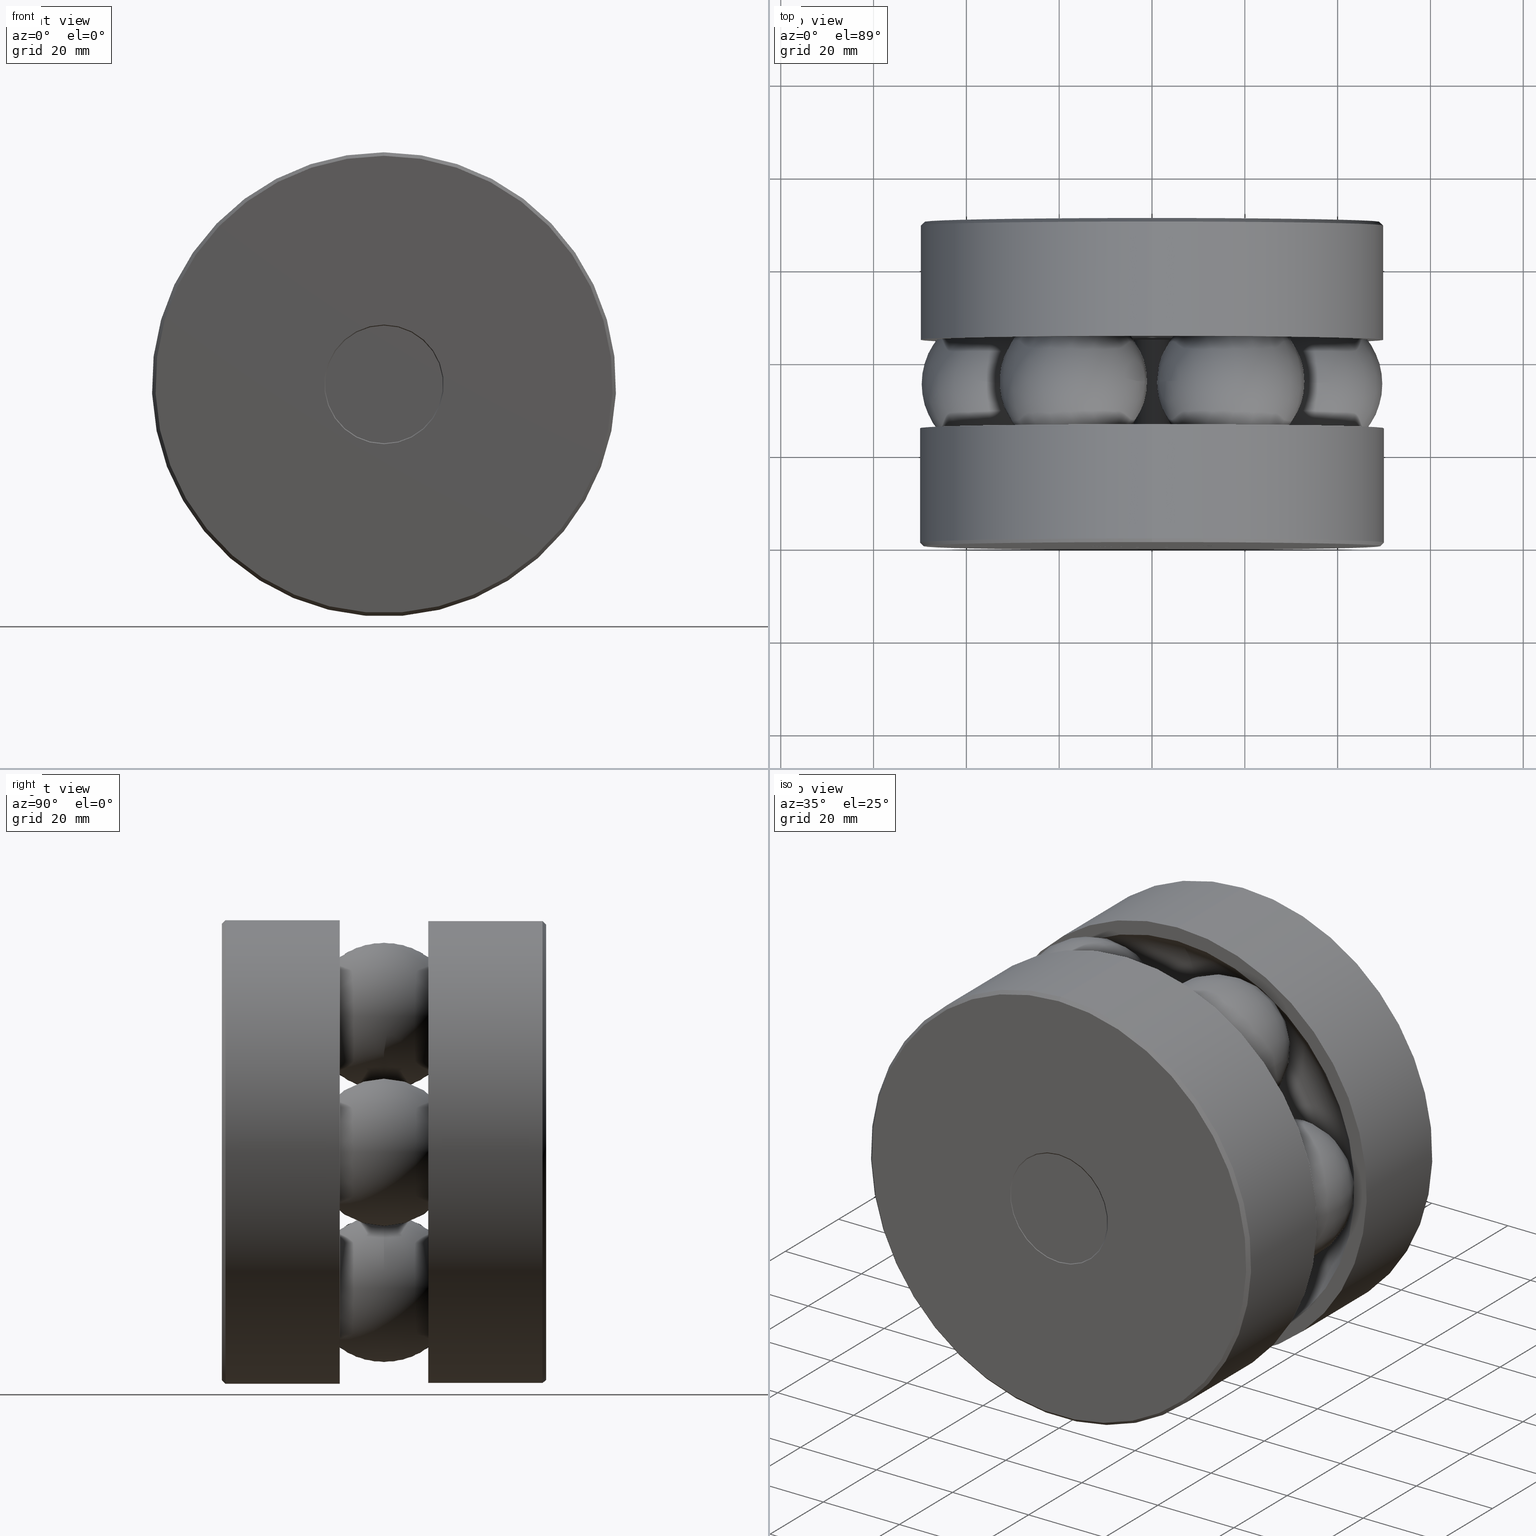
[diagram: canonical four-view strip — front | top / right | iso, engineering-drawing reading convention]
A machine part, canonical four-view strip (front | top / right | iso — engineering-drawing reading convention). The complete STEP part file that produces these views, byte-faithful:
ISO-10303-21;
HEADER;
FILE_DESCRIPTION (( 'STEP AP203' ),
    '1' );
FILE_NAME ('T-114RG_T-114RG-3015.step',
    '2016-02-04T16:15:55',
    ( '' ),
    ( '' ),
    'SwSTEP 2.0',
    'SolidWorks 2016',
    '' );
FILE_SCHEMA (( 'CONFIG_CONTROL_DESIGN' ));
ENDSEC;

DATA;
#1 = EDGE_CURVE ( 'NONE', #110, #110, #397, .T. ) ;
#2 = CARTESIAN_POINT ( 'NONE',  ( 0.0000000000000000000, 0.0000000000000000000, 0.0000000000000000000 ) ) ;
#3 = AXIS2_PLACEMENT_3D ( 'NONE', #221, #475, #307 ) ;
#4 = FACE_OUTER_BOUND ( 'NONE', #491, .T. ) ;
#5 = ORIENTED_EDGE ( 'NONE', *, *, #25, .T. ) ;
#6 = SPHERICAL_SURFACE ( 'NONE', #282, 0.6250000000000000000 ) ;
#7 = DIRECTION ( 'NONE',  ( 0.4999999999999979500, 0.0000000000000000000, -0.8660254037844397100 ) ) ;
#8 = ADVANCED_FACE ( 'NONE', ( ), #508, .T. ) ;
#9 = CLOSED_SHELL ( 'NONE', ( #424 ) ) ;
#10 = DIRECTION ( 'NONE',  ( -0.0000000000000000000, 1.000000000000000000, -0.0000000000000000000 ) ) ;
#11 = ADVANCED_FACE ( 'NONE', ( #63, #171 ), #481, .T. ) ;
#12 = PRODUCT_DEFINITION_SHAPE ( 'NONE', 'NONE',  #144 ) ;
#13 = DIRECTION ( 'NONE',  ( 0.0000000000000000000, 0.0000000000000000000, 1.000000000000000000 ) ) ;
#14 = APPROVAL_DATE_TIME ( #121, #170 ) ;
#15 = MANIFOLD_SOLID_BREP ( 'BALLS[4]', #459 ) ;
#16 = FACE_BOUND ( 'NONE', #161, .T. ) ;
#17 = AXIS2_PLACEMENT_3D ( 'NONE', #217, #265, #385 ) ;
#18 = APPROVAL ( #103, 'UNSPECIFIED' ) ;
#19 = DIRECTION ( 'NONE',  ( 0.0000000000000000000, 0.0000000000000000000, 1.000000000000000000 ) ) ;
#20 = EDGE_CURVE ( 'NONE', #196, #196, #499, .T. ) ;
#21 = CARTESIAN_POINT ( 'NONE',  ( 0.0000000000000000000, 2.406250000000000000, 0.1560000000000003900 ) ) ;
#22 = CIRCLE ( 'NONE', #81, 1.962000000000000000 ) ;
#23 = FACE_BOUND ( 'NONE', #250, .T. ) ;
#24 = PERSON ( 'UNSPECIFIED', 'UNSPECIFIED', 'UNSPECIFIED', ('UNSPECIFIED'), ('UNSPECIFIED'), ('UNSPECIFIED') ) ;
#25 = EDGE_CURVE ( 'NONE', #406, #406, #277, .T. ) ;
#26 = PERSON_AND_ORGANIZATION_ROLE ( 'creator' ) ;
#27 = APPROVAL_PERSON_ORGANIZATION ( #132, #170, #313 ) ;
#28 = AXIS2_PLACEMENT_3D ( 'NONE', #181, #226, #347 ) ;
#29 = ORIENTED_EDGE ( 'NONE', *, *, #79, .F. ) ;
#30 = DIRECTION ( 'NONE',  ( 0.0000000000000000000, -0.0000000000000000000, -1.000000000000000000 ) ) ;
#31 = EDGE_CURVE ( 'NONE', #294, #294, #381, .T. ) ;
#32 = CONICAL_SURFACE ( 'NONE', #464, 0.1560000000000000300, 0.7853981633974437300 ) ;
#33 = CARTESIAN_POINT ( 'NONE',  ( 0.0000000000000000000, 1.749999999999999600, 0.0000000000000000000 ) ) ;
#34 = AXIS2_PLACEMENT_3D ( 'NONE', #519, #268, #139 ) ;
#35 = CIRCLE ( 'NONE', #193, 0.1560000000000000300 ) ;
#36 = EDGE_LOOP ( 'NONE', ( #209 ) ) ;
#37 = AXIS2_PLACEMENT_3D ( 'NONE', #390, #48, #254 ) ;
#38 = CC_DESIGN_APPROVAL ( #18, ( #473 ) ) ;
#39 = DIRECTION ( 'NONE',  ( 0.0000000000000000000, -1.000000000000000000, 0.0000000000000000000 ) ) ;
#40 = EDGE_CURVE ( 'NONE', #185, #185, #44, .T. ) ;
#41 = DIRECTION ( 'NONE',  ( -0.0000000000000000000, 1.000000000000000000, -0.0000000000000000000 ) ) ;
#42 = FACE_OUTER_BOUND ( 'NONE', #479, .T. ) ;
#43 = VERTEX_POINT ( 'NONE', #414 ) ;
#44 = CIRCLE ( 'NONE', #514, 0.1610000000000002800 ) ;
#45 = ADVANCED_FACE ( 'NONE', ( #73, #371 ), #158, .F. ) ;
#46 = EDGE_LOOP ( 'NONE', ( #192 ) ) ;
#47 = ADVANCED_FACE ( 'NONE', ( #147, #485 ), #129, .T. ) ;
#48 = DIRECTION ( 'NONE',  ( -0.0000000000000000000, 1.000000000000000000, -0.0000000000000000000 ) ) ;
#49 = CARTESIAN_POINT ( 'NONE',  ( 0.0000000000000000000, 1.000000000000000200, 0.1610000000000002800 ) ) ;
#50 = EDGE_LOOP ( 'NONE', ( #78 ) ) ;
#51 = EDGE_LOOP ( 'NONE', ( #90 ) ) ;
#52 = DIRECTION ( 'NONE',  ( 0.0000000000000000000, 0.0000000000000000000, -1.000000000000000000 ) ) ;
#53 = AXIS2_PLACEMENT_3D ( 'NONE', #466, #84, #56 ) ;
#54 = EDGE_LOOP ( 'NONE', ( #186 ) ) ;
#55 = CARTESIAN_POINT ( 'NONE',  ( 0.0000000000000000000, 0.9999999999999995600, 0.0000000000000000000 ) ) ;
#56 = DIRECTION ( 'NONE',  ( 0.0000000000000000000, 0.0000000000000000000, 1.000000000000000000 ) ) ;
#57 = CALENDAR_DATE ( 2016, 4, 2 ) ;
#58 = FACE_OUTER_BOUND ( 'NONE', #402, .T. ) ;
#59 = EDGE_CURVE ( 'NONE', #70, #70, #247, .T. ) ;
#60 = CARTESIAN_POINT ( 'NONE',  ( 0.0000000000000000000, 2.750000000000000000, 0.0000000000000000000 ) ) ;
#61 = VERTEX_POINT ( 'NONE', #272 ) ;
#62 = DIRECTION ( 'NONE',  ( 0.0000000000000000000, 0.0000000000000000000, 1.000000000000000000 ) ) ;
#63 = FACE_BOUND ( 'NONE', #346, .T. ) ;
#64 = AXIS2_PLACEMENT_3D ( 'NONE', #366, #541, #319 ) ;
#65 = APPROVAL_STATUS ( 'not_yet_approved' ) ;
#66 = AXIS2_PLACEMENT_3D ( 'NONE', #168, #41, #507 ) ;
#67 = CC_DESIGN_SECURITY_CLASSIFICATION ( #473, ( #118 ) ) ;
#68 = DIRECTION ( 'NONE',  ( -0.0000000000000000000, 1.000000000000000000, 0.0000000000000000000 ) ) ;
#69 = DATE_AND_TIME ( #183, #292 ) ;
#70 = VERTEX_POINT ( 'NONE', #339 ) ;
#71 = DIRECTION ( 'NONE',  ( 0.0000000000000000000, -1.000000000000000000, 0.0000000000000000000 ) ) ;
#72 = DIRECTION ( 'NONE',  ( 0.5000000000000101000, 0.0000000000000000000, 0.8660254037844328200 ) ) ;
#73 = FACE_OUTER_BOUND ( 'NONE', #518, .T. ) ;
#74 = DIRECTION ( 'NONE',  ( 0.0000000000000000000, 0.0000000000000000000, -1.000000000000000000 ) ) ;
#75 = ORIENTED_EDGE ( 'NONE', *, *, #123, .T. ) ;
#76 = AXIS2_PLACEMENT_3D ( 'NONE', #261, #213, #336 ) ;
#77 = PERSON_AND_ORGANIZATION ( #24, #360 ) ;
#78 = ORIENTED_EDGE ( 'NONE', *, *, #188, .F. ) ;
#79 = EDGE_CURVE ( 'NONE', #506, #506, #259, .T. ) ;
#80 = AXIS2_PLACEMENT_3D ( 'NONE', #225, #487, #191 ) ;
#81 = AXIS2_PLACEMENT_3D ( 'NONE', #345, #96, #426 ) ;
#82 = EDGE_LOOP ( 'NONE', ( #206 ) ) ;
#83 = CIRCLE ( 'NONE', #66, 1.932000000000000400 ) ;
#84 = DIRECTION ( 'NONE',  ( -0.0000000000000000000, 1.000000000000000000, -0.0000000000000000000 ) ) ;
#85 = CARTESIAN_POINT ( 'NONE',  ( 0.0000000000000000000, 0.0000000000000000000, 0.0000000000000000000 ) ) ;
#86 = ADVANCED_FACE ( 'NONE', ( #357, #23 ), #425, .T. ) ;
#87 = DIRECTION ( 'NONE',  ( -0.0000000000000000000, 1.000000000000000000, -0.0000000000000000000 ) ) ;
#88 = DIRECTION ( 'NONE',  ( 0.0000000000000000000, 0.0000000000000000000, 1.000000000000000000 ) ) ;
#89 = CARTESIAN_POINT ( 'NONE',  ( 0.0000000000000000000, 0.9999999999999995600, 0.0000000000000000000 ) ) ;
#90 = ORIENTED_EDGE ( 'NONE', *, *, #288, .F. ) ;
#91 = LOCAL_TIME ( 11, 15, 55.00000000000000000, #207 ) ;
#92 = AXIS2_PLACEMENT_3D ( 'NONE', #125, #331, #377 ) ;
#93 = PRODUCT_RELATED_PRODUCT_CATEGORY ( 'detail', '', ( #532 ) ) ;
#94 = CARTESIAN_POINT ( 'NONE',  ( 0.0000000000000000000, 0.03000000000000008900, 0.0000000000000000000 ) ) ;
#95 = FACE_OUTER_BOUND ( 'NONE', #51, .T. ) ;
#96 = DIRECTION ( 'NONE',  ( -0.0000000000000000000, 1.000000000000000000, -0.0000000000000000000 ) ) ;
#97 = DIRECTION ( 'NONE',  ( -0.0000000000000000000, 1.000000000000000000, -0.0000000000000000000 ) ) ;
#98 = ORIENTED_EDGE ( 'NONE', *, *, #123, .F. ) ;
#99 = DIRECTION ( 'NONE',  ( 0.0000000000000000000, -0.0000000000000000000, -1.000000000000000000 ) ) ;
#100 = DIRECTION ( 'NONE',  ( -1.000000000000000000, 0.0000000000000000000, 6.982962677686265900E-015 ) ) ;
#101 = ORIENTED_EDGE ( 'NONE', *, *, #20, .T. ) ;
#102 = CONICAL_SURFACE ( 'NONE', #148, 0.1610000000000004200, 0.7853981633974428400 ) ;
#103 = APPROVAL_STATUS ( 'not_yet_approved' ) ;
#104 = FACE_OUTER_BOUND ( 'NONE', #249, .T. ) ;
#105 = EDGE_CURVE ( 'NONE', #396, #396, #286, .T. ) ;
#106 = APPLICATION_CONTEXT ( 'configuration controlled 3d designs of mechanical parts and assemblies' ) ;
#107 = EDGE_LOOP ( 'NONE', ( #151 ) ) ;
#108 = MANIFOLD_SOLID_BREP ( 'BALLS[2]', #542 ) ;
#109 = CALENDAR_DATE ( 2016, 4, 2 ) ;
#110 = VERTEX_POINT ( 'NONE', #412 ) ;
#111 =( NAMED_UNIT ( * ) SI_UNIT ( $, .STERADIAN. ) SOLID_ANGLE_UNIT ( ) );
#112 = EDGE_CURVE ( 'NONE', #285, #285, #35, .T. ) ;
#113 = DIRECTION ( 'NONE',  ( 0.0000000000000000000, 0.0000000000000000000, 1.000000000000000000 ) ) ;
#114 = CC_DESIGN_PERSON_AND_ORGANIZATION_ASSIGNMENT ( #248, #401, ( #532 ) ) ;
#115 = DIRECTION ( 'NONE',  ( 0.0000000000000000000, 0.0000000000000000000, 1.000000000000000000 ) ) ;
#116 = CYLINDRICAL_SURFACE ( 'NONE', #503, 0.1610000000000001400 ) ;
#117 = ORIENTED_EDGE ( 'NONE', *, *, #1, .F. ) ;
#118 = PRODUCT_DEFINITION_FORMATION_WITH_SPECIFIED_SOURCE ( 'ANY', '', #532, .NOT_KNOWN. ) ;
#119 = FACE_OUTER_BOUND ( 'NONE', #46, .T. ) ;
#120 = EDGE_LOOP ( 'NONE', ( #75 ) ) ;
#121 = DATE_AND_TIME ( #236, #340 ) ;
#122 = CIRCLE ( 'NONE', #293, 1.835000000000000200 ) ;
#123 = EDGE_CURVE ( 'NONE', #167, #167, #453, .T. ) ;
#124 = CLOSED_SHELL ( 'NONE', ( #127 ) ) ;
#125 = CARTESIAN_POINT ( 'NONE',  ( -0.8349999999999997400, 1.000000000000000000, 0.0000000000000000000 ) ) ;
#126 = FACE_OUTER_BOUND ( 'NONE', #281, .T. ) ;
#127 = ADVANCED_FACE ( 'NONE', ( ), #6, .T. ) ;
#128 = DIRECTION ( 'NONE',  ( -0.0000000000000000000, 1.000000000000000000, -0.0000000000000000000 ) ) ;
#129 = CONICAL_SURFACE ( 'NONE', #548, 1.968999999999999900, 0.7853981633974430600 ) ;
#130 = EDGE_LOOP ( 'NONE', ( #432 ) ) ;
#131 = ADVANCED_FACE ( 'NONE', ( #232 ), #310, .T. ) ;
#132 = PERSON_AND_ORGANIZATION ( #24, #360 ) ;
#133 = EDGE_LOOP ( 'NONE', ( #372 ) ) ;
#134 = CARTESIAN_POINT ( 'NONE',  ( 0.0000000000000000000, 0.3437500000000000000, 0.1560000000000000300 ) ) ;
#135 = ADVANCED_FACE ( 'NONE', ( #465, #326 ), #395, .F. ) ;
#136 = DIRECTION ( 'NONE',  ( 0.0000000000000000000, 0.0000000000000000000, 1.000000000000000000 ) ) ;
#137 = AXIS2_PLACEMENT_3D ( 'NONE', #398, #146, #433 ) ;
#138 = EDGE_LOOP ( 'NONE', ( #142 ) ) ;
#139 = DIRECTION ( 'NONE',  ( 0.0000000000000000000, 0.0000000000000000000, 1.000000000000000000 ) ) ;
#140 = CARTESIAN_POINT ( 'NONE',  ( 0.0000000000000000000, 1.000000000000000200, 0.0000000000000000000 ) ) ;
#141 = DIRECTION ( 'NONE',  ( -0.0000000000000000000, 1.000000000000000000, -0.0000000000000000000 ) ) ;
#142 = ORIENTED_EDGE ( 'NONE', *, *, #455, .F. ) ;
#143 = EDGE_CURVE ( 'NONE', #61, #61, #547, .T. ) ;
#144 = PRODUCT_DEFINITION ( 'UNKNOWN', '', #118, #314 ) ;
#145 = CIRCLE ( 'NONE', #500, 0.8349999999999997400 ) ;
#146 = DIRECTION ( 'NONE',  ( -0.0000000000000000000, 1.000000000000000000, -0.0000000000000000000 ) ) ;
#147 = FACE_BOUND ( 'NONE', #417, .T. ) ;
#148 = AXIS2_PLACEMENT_3D ( 'NONE', #176, #10, #512 ) ;
#149 = PERSON_AND_ORGANIZATION_ROLE ( 'classification_officer' ) ;
#150 = MECHANICAL_CONTEXT ( 'NONE', #235, 'mechanical' ) ;
#151 = ORIENTED_EDGE ( 'NONE', *, *, #31, .T. ) ;
#152 = CLOSED_SHELL ( 'NONE', ( #8 ) ) ;
#153 = PLANE ( 'NONE',  #241 ) ;
#154 = CARTESIAN_POINT ( 'NONE',  ( 0.6674999999999892100, 1.374999999999999300, -1.156143914052231800 ) ) ;
#155 = FACE_BOUND ( 'NONE', #36, .T. ) ;
#156 = VERTEX_POINT ( 'NONE', #204 ) ;
#157 = DIRECTION ( 'NONE',  ( -0.0000000000000000000, 1.000000000000000000, -0.0000000000000000000 ) ) ;
#158 = TOROIDAL_SURFACE ( 'NONE', #28, 1.335000000000000200, 0.6250000000000000000 ) ;
#159 = DIRECTION ( 'NONE',  ( 0.0000000000000000000, -0.0000000000000000000, -1.000000000000000000 ) ) ;
#160 = CARTESIAN_POINT ( 'NONE',  ( 0.0000000000000000000, 2.750000000000000000, 1.932000000000000400 ) ) ;
#161 = EDGE_LOOP ( 'NONE', ( #290 ) ) ;
#162 = AXIS2_PLACEMENT_3D ( 'NONE', #468, #216, #174 ) ;
#163 = ORIENTED_EDGE ( 'NONE', *, *, #275, .F. ) ;
#164 = LOCAL_TIME ( 11, 15, 55.00000000000000000, #283 ) ;
#165 = ORIENTED_EDGE ( 'NONE', *, *, #1, .T. ) ;
#166 = FACE_BOUND ( 'NONE', #384, .T. ) ;
#167 = VERTEX_POINT ( 'NONE', #523 ) ;
#168 = CARTESIAN_POINT ( 'NONE',  ( 0.0000000000000000000, 2.750000000000000000, 0.0000000000000000000 ) ) ;
#169 = EDGE_CURVE ( 'NONE', #497, #497, #439, .T. ) ;
#170 = APPROVAL ( #65, 'UNSPECIFIED' ) ;
#171 = FACE_OUTER_BOUND ( 'NONE', #436, .T. ) ;
#172 = CARTESIAN_POINT ( 'NONE',  ( 0.0000000000000000000, 0.9999999999999996700, 0.8349999999999997400 ) ) ;
#173 = ADVANCED_FACE ( 'NONE', ( ), #284, .T. ) ;
#174 = DIRECTION ( 'NONE',  ( 0.0000000000000000000, 0.0000000000000000000, 1.000000000000000000 ) ) ;
#175 = ADVANCED_FACE ( 'NONE', ( #166, #104 ), #274, .T. ) ;
#176 = CARTESIAN_POINT ( 'NONE',  ( 0.0000000000000000000, 2.404178932188134200, 0.0000000000000000000 ) ) ;
#177 = CARTESIAN_POINT ( 'NONE',  ( 0.0000000000000000000, 0.9999999999999995600, 1.968999999999999900 ) ) ;
#178 = DIRECTION ( 'NONE',  ( -0.0000000000000000000, 1.000000000000000000, 0.0000000000000000000 ) ) ;
#179 = CARTESIAN_POINT ( 'NONE',  ( 0.0000000000000000000, 2.750000000000000000, 0.0000000000000000000 ) ) ;
#180 = AXIS2_PLACEMENT_3D ( 'NONE', #210, #404, #30 ) ;
#181 = CARTESIAN_POINT ( 'NONE',  ( 0.0000000000000000000, 1.374999999999999300, 0.0000000000000000000 ) ) ;
#182 = DIMENSIONAL_EXPONENTS ( 1.000000000000000000, 0.0000000000000000000, 0.0000000000000000000, 0.0000000000000000000, 0.0000000000000000000, 0.0000000000000000000, 0.0000000000000000000 ) ;
#183 = CALENDAR_DATE ( 2016, 4, 2 ) ;
#184 = CARTESIAN_POINT ( 'NONE',  ( 0.0000000000000000000, -1.772329221079896900E-016, 1.939000000000000100 ) ) ;
#185 = VERTEX_POINT ( 'NONE', #49 ) ;
#186 = ORIENTED_EDGE ( 'NONE', *, *, #79, .T. ) ;
#187 = CARTESIAN_POINT ( 'NONE',  ( 1.335000000000000200, 1.374999999999999300, -9.322255174711166700E-015 ) ) ;
#188 = EDGE_CURVE ( 'NONE', #379, #379, #215, .T. ) ;
#189 = PERSON_AND_ORGANIZATION_ROLE ( 'design_supplier' ) ;
#190 = ORIENTED_EDGE ( 'NONE', *, *, #112, .T. ) ;
#191 = DIRECTION ( 'NONE',  ( 1.000000000000000000, 0.0000000000000000000, 0.0000000000000000000 ) ) ;
#192 = ORIENTED_EDGE ( 'NONE', *, *, #59, .F. ) ;
#193 = AXIS2_PLACEMENT_3D ( 'NONE', #230, #529, #278 ) ;
#194 = PERSON_AND_ORGANIZATION ( #24, #360 ) ;
#195 = DIRECTION ( 'NONE',  ( -0.0000000000000000000, 1.000000000000000000, -0.0000000000000000000 ) ) ;
#196 = VERTEX_POINT ( 'NONE', #172 ) ;
#197 = EDGE_CURVE ( 'NONE', #276, #276, #496, .T. ) ;
#198 = CARTESIAN_POINT ( 'NONE',  ( 0.0000000000000000000, 2.406250000000000000, 0.0000000000000000000 ) ) ;
#199 = CC_DESIGN_APPROVAL ( #170, ( #144 ) ) ;
#200 = EDGE_LOOP ( 'NONE', ( #472 ) ) ;
#201 =( LENGTH_UNIT ( ) NAMED_UNIT ( * ) SI_UNIT ( $, .METRE. ) );
#202 = DIRECTION ( 'NONE',  ( 0.0000000000000000000, 0.0000000000000000000, 1.000000000000000000 ) ) ;
#203 = FACE_OUTER_BOUND ( 'NONE', #533, .T. ) ;
#204 = CARTESIAN_POINT ( 'NONE',  ( 0.0000000000000000000, 1.749999999999999600, 0.8349999999999997400 ) ) ;
#205 = MANIFOLD_SOLID_BREP ( 'Revolve2[1]', #211 ) ;
#206 = ORIENTED_EDGE ( 'NONE', *, *, #143, .F. ) ;
#207 = COORDINATED_UNIVERSAL_TIME_OFFSET ( 5, 0, .BEHIND. ) ;
#208 = CIRCLE ( 'NONE', #408, 0.5068210678118617600 ) ;
#209 = ORIENTED_EDGE ( 'NONE', *, *, #112, .F. ) ;
#210 = CARTESIAN_POINT ( 'NONE',  ( -0.5068210678118617600, -9.346574812682652800E-017, 0.0000000000000000000 ) ) ;
#211 = CLOSED_SHELL ( 'NONE', ( #515, #131, #175, #338, #214 ) ) ;
#212 = FACE_OUTER_BOUND ( 'NONE', #239, .T. ) ;
#213 = DIRECTION ( 'NONE',  ( -0.0000000000000000000, 1.000000000000000000, -0.0000000000000000000 ) ) ;
#214 = ADVANCED_FACE ( 'NONE', ( #58, #155 ), #32, .T. ) ;
#215 = CIRCLE ( 'NONE', #411, 1.939000000000000100 ) ;
#216 = DIRECTION ( 'NONE',  ( -0.0000000000000000000, 1.000000000000000000, 0.0000000000000000000 ) ) ;
#217 = CARTESIAN_POINT ( 'NONE',  ( 0.0000000000000000000, 0.0000000000000000000, 0.0000000000000000000 ) ) ;
#218 = ADVANCED_FACE ( 'NONE', ( ), #480, .T. ) ;
#219 = DIRECTION ( 'NONE',  ( 0.0000000000000000000, -1.000000000000000000, 0.0000000000000000000 ) ) ;
#220 = ORIENTED_EDGE ( 'NONE', *, *, #455, .T. ) ;
#221 = CARTESIAN_POINT ( 'NONE',  ( 0.6675000000000055300, 1.374999999999999300, 1.156143914052222700 ) ) ;
#222 = LOCAL_TIME ( 11, 15, 55.00000000000000000, #328 ) ;
#223 = DIRECTION ( 'NONE',  ( 0.0000000000000000000, 0.0000000000000000000, 1.000000000000000000 ) ) ;
#224 = AXIS2_PLACEMENT_3D ( 'NONE', #262, #513, #13 ) ;
#225 = CARTESIAN_POINT ( 'NONE',  ( 0.0000000000000000000, 0.0000000000000000000, 0.0000000000000000000 ) ) ;
#226 = DIRECTION ( 'NONE',  ( -0.0000000000000000000, 1.000000000000000000, -0.0000000000000000000 ) ) ;
#227 = CARTESIAN_POINT ( 'NONE',  ( -0.8349999999999998500, 1.749999999999999600, 0.0000000000000000000 ) ) ;
#228 = EDGE_CURVE ( 'NONE', #156, #156, #145, .T. ) ;
#229 = CC_DESIGN_PERSON_AND_ORGANIZATION_ASSIGNMENT ( #441, #26, ( #144 ) ) ;
#230 = CARTESIAN_POINT ( 'NONE',  ( 0.0000000000000000000, 0.3437500000000000000, 0.0000000000000000000 ) ) ;
#231 = FACE_BOUND ( 'NONE', #351, .T. ) ;
#232 = FACE_OUTER_BOUND ( 'NONE', #315, .T. ) ;
#233 = APPROVAL_ROLE ( '' ) ;
#234 = CLOSED_SHELL ( 'NONE', ( #252, #47, #383, #135, #301, #348, #45, #386 ) ) ;
#235 = APPLICATION_CONTEXT ( 'configuration controlled 3d designs of mechanical parts and assemblies' ) ;
#236 = CALENDAR_DATE ( 2016, 4, 2 ) ;
#237 = FACE_OUTER_BOUND ( 'NONE', #409, .T. ) ;
#238 =( NAMED_UNIT ( * ) PLANE_ANGLE_UNIT ( ) SI_UNIT ( $, .RADIAN. ) );
#239 = EDGE_LOOP ( 'NONE', ( #502 ) ) ;
#240 = CARTESIAN_POINT ( 'NONE',  ( 0.0000000000000000000, -1.772329221079896900E-016, 0.0000000000000000000 ) ) ;
#241 = AXIS2_PLACEMENT_3D ( 'NONE', #443, #68, #539 ) ;
#242 = DIRECTION ( 'NONE',  ( 0.0000000000000000000, 0.0000000000000000000, 1.000000000000000000 ) ) ;
#243 = ORIENTED_EDGE ( 'NONE', *, *, #228, .F. ) ;
#244 = CARTESIAN_POINT ( 'NONE',  ( 0.0000000000000000000, 0.3437500000000000000, 0.0000000000000000000 ) ) ;
#245 = CYLINDRICAL_SURFACE ( 'NONE', #64, 1.968999999999999900 ) ;
#246 = PLANE ( 'NONE',  #495 ) ;
#247 = CIRCLE ( 'NONE', #53, 0.1610000000000004200 ) ;
#248 = PERSON_AND_ORGANIZATION ( #24, #360 ) ;
#249 = EDGE_LOOP ( 'NONE', ( #428 ) ) ;
#250 = EDGE_LOOP ( 'NONE', ( #117 ) ) ;
#251 = DIRECTION ( 'NONE',  ( 0.0000000000000000000, 0.0000000000000000000, -1.000000000000000000 ) ) ;
#252 = ADVANCED_FACE ( 'NONE', ( #378, #42 ), #245, .T. ) ;
#253 = ORIENTED_EDGE ( 'NONE', *, *, #143, .T. ) ;
#254 = DIRECTION ( 'NONE',  ( 0.0000000000000000000, 0.0000000000000000000, 1.000000000000000000 ) ) ;
#255 = FACE_OUTER_BOUND ( 'NONE', #200, .T. ) ;
#256 = AXIS2_PLACEMENT_3D ( 'NONE', #60, #97, #524 ) ;
#257 = VERTEX_POINT ( 'NONE', #422 ) ;
#258 = CC_DESIGN_DATE_AND_TIME_ASSIGNMENT ( #549, #279, ( #144 ) ) ;
#259 = CIRCLE ( 'NONE', #76, 1.962000000000000000 ) ;
#260 = DIRECTION ( 'NONE',  ( 0.0000000000000000000, 0.0000000000000000000, 1.000000000000000000 ) ) ;
#261 = CARTESIAN_POINT ( 'NONE',  ( 0.0000000000000000000, 1.749999999999999600, 0.0000000000000000000 ) ) ;
#262 = CARTESIAN_POINT ( 'NONE',  ( 0.0000000000000000000, 0.3458210678118654500, 0.0000000000000000000 ) ) ;
#263 = ADVANCED_FACE ( 'NONE', ( ), #463, .T. ) ;
#264 = ORIENTED_EDGE ( 'NONE', *, *, #288, .T. ) ;
#265 = DIRECTION ( 'NONE',  ( -0.0000000000000000000, 1.000000000000000000, -0.0000000000000000000 ) ) ;
#266 = ORIENTED_EDGE ( 'NONE', *, *, #20, .F. ) ;
#267 = ADVANCED_BREP_SHAPE_REPRESENTATION ( 'T-114RG_T-114RG-3015', ( #205, #526, #403, #322, #421, #108, #303, #15, #458, #80 ), #525 ) ;
#268 = DIRECTION ( 'NONE',  ( -0.0000000000000000000, 1.000000000000000000, -0.0000000000000000000 ) ) ;
#269 = AXIS2_PLACEMENT_3D ( 'NONE', #187, #483, #100 ) ;
#270 = CLOSED_SHELL ( 'NONE', ( #173 ) ) ;
#271 = DIRECTION ( 'NONE',  ( 0.0000000000000000000, 0.0000000000000000000, 1.000000000000000000 ) ) ;
#272 = CARTESIAN_POINT ( 'NONE',  ( 0.0000000000000000000, 0.03000000000000008900, 1.968999999999999900 ) ) ;
#273 = DIRECTION ( 'NONE',  ( 0.0000000000000000000, 0.0000000000000000000, 1.000000000000000000 ) ) ;
#274 = CONICAL_SURFACE ( 'NONE', #354, 0.4997499999999973100, 0.7853981633974440600 ) ;
#275 = EDGE_CURVE ( 'NONE', #43, #43, #367, .T. ) ;
#276 = VERTEX_POINT ( 'NONE', #21 ) ;
#277 = CIRCLE ( 'NONE', #399, 0.4997499999999973100 ) ;
#278 = DIRECTION ( 'NONE',  ( 0.0000000000000000000, 0.0000000000000000000, 1.000000000000000000 ) ) ;
#279 = DATE_TIME_ROLE ( 'creation_date' ) ;
#280 = LENGTH_MEASURE_WITH_UNIT ( LENGTH_MEASURE( 0.02539999999999999900 ), #201 );
#281 = EDGE_LOOP ( 'NONE', ( #98 ) ) ;
#282 = AXIS2_PLACEMENT_3D ( 'NONE', #484, #511, #7 ) ;
#283 = COORDINATED_UNIVERSAL_TIME_OFFSET ( 5, 0, .BEHIND. ) ;
#284 = SPHERICAL_SURFACE ( 'NONE', #380, 0.6250000000000000000 ) ;
#285 = VERTEX_POINT ( 'NONE', #134 ) ;
#286 = CIRCLE ( 'NONE', #137, 0.1610000000000004200 ) ;
#287 = DIRECTION ( 'NONE',  ( 0.0000000000000000000, 0.0000000000000000000, -1.000000000000000000 ) ) ;
#288 = EDGE_CURVE ( 'NONE', #482, #482, #22, .T. ) ;
#289 = EDGE_LOOP ( 'NONE', ( #450 ) ) ;
#290 = ORIENTED_EDGE ( 'NONE', *, *, #169, .T. ) ;
#291 = CARTESIAN_POINT ( 'NONE',  ( 0.0000000000000000000, 2.750000000000000000, 0.0000000000000000000 ) ) ;
#292 = LOCAL_TIME ( 11, 15, 55.00000000000000000, #405 ) ;
#293 = AXIS2_PLACEMENT_3D ( 'NONE', #89, #429, #223 ) ;
#294 = VERTEX_POINT ( 'NONE', #177 ) ;
#295 = PLANE ( 'NONE',  #92 ) ;
#296 = EDGE_LOOP ( 'NONE', ( #266 ) ) ;
#297 = AXIS2_PLACEMENT_3D ( 'NONE', #308, #370, #115 ) ;
#298 = CARTESIAN_POINT ( 'NONE',  ( 0.0000000000000000000, -9.698574145663359300E-018, 0.5068210678118617600 ) ) ;
#299 = SPHERICAL_SURFACE ( 'NONE', #269, 0.6250000000000000000 ) ;
#300 = DIRECTION ( 'NONE',  ( 0.0000000000000000000, 0.0000000000000000000, 1.000000000000000000 ) ) ;
#301 = ADVANCED_FACE ( 'NONE', ( #255, #126 ), #116, .F. ) ;
#302 = CARTESIAN_POINT ( 'NONE',  ( 0.0000000000000000000, 2.404178932188134200, 0.1610000000000004200 ) ) ;
#303 = MANIFOLD_SOLID_BREP ( 'BALLS[3]', #9 ) ;
#304 = ADVANCED_FACE ( 'NONE', ( #355, #334 ), #102, .F. ) ;
#305 = AXIS2_PLACEMENT_3D ( 'NONE', #350, #219, #52 ) ;
#306 = APPROVAL_DATE_TIME ( #418, #362 ) ;
#307 = DIRECTION ( 'NONE',  ( -0.5000000000000040000, 0.0000000000000000000, -0.8660254037844362700 ) ) ;
#308 = CARTESIAN_POINT ( 'NONE',  ( 0.0000000000000000000, 0.03000000000000008900, 0.0000000000000000000 ) ) ;
#309 = CARTESIAN_POINT ( 'NONE',  ( 0.0000000000000000000, 0.0000000000000000000, 0.0000000000000000000 ) ) ;
#310 = PLANE ( 'NONE',  #330 ) ;
#311 = AXIS2_PLACEMENT_3D ( 'NONE', #449, #364, #72 ) ;
#312 = VERTEX_POINT ( 'NONE', #298 ) ;
#313 = APPROVAL_ROLE ( '' ) ;
#314 = DESIGN_CONTEXT ( 'detailed design', #106, 'design' ) ;
#315 = EDGE_LOOP ( 'NONE', ( #5 ) ) ;
#316 = APPROVAL_PERSON_ORGANIZATION ( #430, #362, #233 ) ;
#317 = FACE_OUTER_BOUND ( 'NONE', #373, .T. ) ;
#318 = EDGE_LOOP ( 'NONE', ( #253 ) ) ;
#319 = DIRECTION ( 'NONE',  ( 0.0000000000000000000, 0.0000000000000000000, 1.000000000000000000 ) ) ;
#320 = AXIS2_PLACEMENT_3D ( 'NONE', #309, #528, #62 ) ;
#321 = DIRECTION ( 'NONE',  ( -0.0000000000000000000, 1.000000000000000000, -0.0000000000000000000 ) ) ;
#322 = MANIFOLD_SOLID_BREP ( 'Revolve3', #270 ) ;
#323 = AXIS2_PLACEMENT_3D ( 'NONE', #33, #544, #498 ) ;
#324 = DIRECTION ( 'NONE',  ( 0.0000000000000000000, 0.0000000000000000000, 1.000000000000000000 ) ) ;
#325 = FACE_OUTER_BOUND ( 'NONE', #543, .T. ) ;
#326 = FACE_OUTER_BOUND ( 'NONE', #133, .T. ) ;
#327 = EDGE_LOOP ( 'NONE', ( #531 ) ) ;
#328 = COORDINATED_UNIVERSAL_TIME_OFFSET ( 5, 0, .BEHIND. ) ;
#329 = FACE_OUTER_BOUND ( 'NONE', #461, .T. ) ;
#330 = AXIS2_PLACEMENT_3D ( 'NONE', #353, #178, #300 ) ;
#331 = DIRECTION ( 'NONE',  ( -0.0000000000000000000, 1.000000000000000000, 0.0000000000000000000 ) ) ;
#332 = EDGE_LOOP ( 'NONE', ( #165 ) ) ;
#333 = AXIS2_PLACEMENT_3D ( 'NONE', #471, #87, #273 ) ;
#334 = FACE_BOUND ( 'NONE', #374, .T. ) ;
#335 = FACE_BOUND ( 'NONE', #138, .T. ) ;
#336 = DIRECTION ( 'NONE',  ( 0.0000000000000000000, 0.0000000000000000000, 1.000000000000000000 ) ) ;
#337 = CLOSED_SHELL ( 'NONE', ( #304, #427, #11, #341, #469, #510, #470, #86 ) ) ;
#338 = ADVANCED_FACE ( 'NONE', ( #4, #325 ), #546, .T. ) ;
#339 = CARTESIAN_POINT ( 'NONE',  ( 0.0000000000000000000, 1.749999999999999600, 0.1610000000000004200 ) ) ;
#340 = LOCAL_TIME ( 11, 15, 55.00000000000000000, #457 ) ;
#341 = ADVANCED_FACE ( 'NONE', ( #212, #423 ), #451, .F. ) ;
#342 = DIRECTION ( 'NONE',  ( -0.0000000000000000000, 1.000000000000000000, -0.0000000000000000000 ) ) ;
#343 = CARTESIAN_POINT ( 'NONE',  ( -1.962000000000000000, 1.749999999999999600, 0.0000000000000000000 ) ) ;
#344 = FACE_OUTER_BOUND ( 'NONE', #456, .T. ) ;
#345 = CARTESIAN_POINT ( 'NONE',  ( 0.0000000000000000000, 2.719999999999999300, 0.0000000000000000000 ) ) ;
#346 = EDGE_LOOP ( 'NONE', ( #490 ) ) ;
#347 = DIRECTION ( 'NONE',  ( 0.0000000000000000000, 0.0000000000000000000, 1.000000000000000000 ) ) ;
#348 = ADVANCED_FACE ( 'NONE', ( #203, #231 ), #295, .T. ) ;
#349 = AXIS2_PLACEMENT_3D ( 'NONE', #291, #39, #251 ) ;
#350 = CARTESIAN_POINT ( 'NONE',  ( 0.0000000000000000000, -9.698574145663359300E-018, 0.0000000000000000000 ) ) ;
#351 = EDGE_LOOP ( 'NONE', ( #387 ) ) ;
#352 = PLANE ( 'NONE',  #375 ) ;
#353 = CARTESIAN_POINT ( 'NONE',  ( 0.0000000000000000000, 2.750000000000000000, 0.0000000000000000000 ) ) ;
#354 = AXIS2_PLACEMENT_3D ( 'NONE', #410, #321, #242 ) ;
#355 = FACE_OUTER_BOUND ( 'NONE', #332, .T. ) ;
#356 = EDGE_CURVE ( 'NONE', #368, #368, #83, .T. ) ;
#357 = FACE_OUTER_BOUND ( 'NONE', #527, .T. ) ;
#358 = APPROVAL_ROLE ( '' ) ;
#359 = APPLICATION_PROTOCOL_DEFINITION ( 'international standard', 'config_control_design', 1994, #106 ) ;
#360 = ORGANIZATION ( 'UNSPECIFIED', 'UNSPECIFIED', '' ) ;
#361 = ORIENTED_EDGE ( 'NONE', *, *, #105, .F. ) ;
#362 = APPROVAL ( #535, 'UNSPECIFIED' ) ;
#363 = UNCERTAINTY_MEASURE_WITH_UNIT (LENGTH_MEASURE( 1.000000000000000100E-005 ), #467, 'distance_accuracy_value', 'NONE');
#364 = DIRECTION ( 'NONE',  ( 0.8660254037844328200, 0.0000000000000000000, -0.5000000000000101000 ) ) ;
#365 = ORIENTED_EDGE ( 'NONE', *, *, #275, .T. ) ;
#366 = CARTESIAN_POINT ( 'NONE',  ( 0.0000000000000000000, 0.0000000000000000000, 0.0000000000000000000 ) ) ;
#367 = CIRCLE ( 'NONE', #34, 0.4997499999999968100 ) ;
#368 = VERTEX_POINT ( 'NONE', #160 ) ;
#369 = AXIS2_PLACEMENT_3D ( 'NONE', #227, #478, #99 ) ;
#370 = DIRECTION ( 'NONE',  ( -0.0000000000000000000, 1.000000000000000000, -0.0000000000000000000 ) ) ;
#371 = FACE_OUTER_BOUND ( 'NONE', #296, .T. ) ;
#372 = ORIENTED_EDGE ( 'NONE', *, *, #536, .F. ) ;
#373 = EDGE_LOOP ( 'NONE', ( #163 ) ) ;
#374 = EDGE_LOOP ( 'NONE', ( #361 ) ) ;
#375 = AXIS2_PLACEMENT_3D ( 'NONE', #343, #474, #516 ) ;
#376 = APPROVAL_DATE_TIME ( #494, #18 ) ;
#377 = DIRECTION ( 'NONE',  ( 0.0000000000000000000, 0.0000000000000000000, 1.000000000000000000 ) ) ;
#378 = FACE_OUTER_BOUND ( 'NONE', #318, .T. ) ;
#379 = VERTEX_POINT ( 'NONE', #184 ) ;
#380 = AXIS2_PLACEMENT_3D ( 'NONE', #413, #74, #448 ) ;
#381 = CIRCLE ( 'NONE', #489, 1.968999999999999900 ) ;
#382 = CARTESIAN_POINT ( 'NONE',  ( 0.0000000000000000000, -9.698574145663359300E-018, 0.0000000000000000000 ) ) ;
#383 = ADVANCED_FACE ( 'NONE', ( #437, #415 ), #420, .T. ) ;
#384 = EDGE_LOOP ( 'NONE', ( #488 ) ) ;
#385 = DIRECTION ( 'NONE',  ( 0.0000000000000000000, 0.0000000000000000000, 1.000000000000000000 ) ) ;
#386 = ADVANCED_FACE ( 'NONE', ( #534, #335 ), #153, .T. ) ;
#387 = ORIENTED_EDGE ( 'NONE', *, *, #40, .F. ) ;
#388 = CARTESIAN_POINT ( 'NONE',  ( 0.0000000000000000000, 1.749999999999999600, 1.962000000000000000 ) ) ;
#389 = CC_DESIGN_APPROVAL ( #362, ( #118 ) ) ;
#390 = CARTESIAN_POINT ( 'NONE',  ( 0.0000000000000000000, 1.374999999999999300, 0.0000000000000000000 ) ) ;
#391 = DIRECTION ( 'NONE',  ( -0.0000000000000000000, 1.000000000000000000, -0.0000000000000000000 ) ) ;
#392 = CARTESIAN_POINT ( 'NONE',  ( 0.0000000000000000000, 1.749999999999999600, 1.835000000000000400 ) ) ;
#393 = DIRECTION ( 'NONE',  ( 0.0000000000000000000, 0.0000000000000000000, 1.000000000000000000 ) ) ;
#394 = APPROVAL_PERSON_ORGANIZATION ( #505, #18, #358 ) ;
#395 = CONICAL_SURFACE ( 'NONE', #305, 0.5068210678118617600, 0.7853981633974429500 ) ;
#396 = VERTEX_POINT ( 'NONE', #302 ) ;
#397 = CIRCLE ( 'NONE', #256, 0.5068210678118622000 ) ;
#398 = CARTESIAN_POINT ( 'NONE',  ( 0.0000000000000000000, 2.404178932188134200, 0.0000000000000000000 ) ) ;
#399 = AXIS2_PLACEMENT_3D ( 'NONE', #179, #476, #136 ) ;
#400 = DATE_TIME_ROLE ( 'classification_date' ) ;
#401 = PERSON_AND_ORGANIZATION_ROLE ( 'design_owner' ) ;
#402 = EDGE_LOOP ( 'NONE', ( #365 ) ) ;
#403 = MANIFOLD_SOLID_BREP ( 'Revolve2[3]', #234 ) ;
#404 = DIRECTION ( 'NONE',  ( 0.0000000000000000000, -1.000000000000000000, 0.0000000000000000000 ) ) ;
#405 = COORDINATED_UNIVERSAL_TIME_OFFSET ( 5, 0, .BEHIND. ) ;
#406 = VERTEX_POINT ( 'NONE', #509 ) ;
#407 = DIRECTION ( 'NONE',  ( -0.4999999999999919000, 0.0000000000000000000, 0.8660254037844432600 ) ) ;
#408 = AXIS2_PLACEMENT_3D ( 'NONE', #382, #128, #260 ) ;
#409 = EDGE_LOOP ( 'NONE', ( #462 ) ) ;
#410 = CARTESIAN_POINT ( 'NONE',  ( 0.0000000000000000000, 2.750000000000000000, 0.0000000000000000000 ) ) ;
#411 = AXIS2_PLACEMENT_3D ( 'NONE', #240, #195, #324 ) ;
#412 = CARTESIAN_POINT ( 'NONE',  ( 0.0000000000000000000, 2.750000000000000000, 0.5068210678118622000 ) ) ;
#413 = CARTESIAN_POINT ( 'NONE',  ( -1.335000000000000200, 1.374999999999999300, 0.0000000000000000000 ) ) ;
#414 = CARTESIAN_POINT ( 'NONE',  ( 0.0000000000000000000, 0.0000000000000000000, 0.4997499999999968100 ) ) ;
#415 = FACE_OUTER_BOUND ( 'NONE', #50, .T. ) ;
#416 = CC_DESIGN_PERSON_AND_ORGANIZATION_ASSIGNMENT ( #194, #486, ( #118 ) ) ;
#417 = EDGE_LOOP ( 'NONE', ( #445 ) ) ;
#418 = DATE_AND_TIME ( #538, #91 ) ;
#419 = CYLINDRICAL_SURFACE ( 'NONE', #460, 1.962000000000000000 ) ;
#420 = PLANE ( 'NONE',  #180 ) ;
#421 = MANIFOLD_SOLID_BREP ( 'BALLS[1]', #124 ) ;
#422 = CARTESIAN_POINT ( 'NONE',  ( 0.0000000000000000000, 0.9999999999999995600, 1.835000000000000200 ) ) ;
#423 = FACE_OUTER_BOUND ( 'NONE', #327, .T. ) ;
#424 = ADVANCED_FACE ( 'NONE', ( ), #299, .T. ) ;
#425 = PLANE ( 'NONE',  #162 ) ;
#426 = DIRECTION ( 'NONE',  ( 0.0000000000000000000, 0.0000000000000000000, 1.000000000000000000 ) ) ;
#427 = ADVANCED_FACE ( 'NONE', ( #237, #119 ), #444, .F. ) ;
#428 = ORIENTED_EDGE ( 'NONE', *, *, #25, .F. ) ;
#429 = DIRECTION ( 'NONE',  ( -0.0000000000000000000, 1.000000000000000000, -0.0000000000000000000 ) ) ;
#430 = PERSON_AND_ORGANIZATION ( #24, #360 ) ;
#431 = FACE_BOUND ( 'NONE', #289, .T. ) ;
#432 = ORIENTED_EDGE ( 'NONE', *, *, #536, .T. ) ;
#433 = DIRECTION ( 'NONE',  ( 0.0000000000000000000, 0.0000000000000000000, 1.000000000000000000 ) ) ;
#434 = AXIS2_PLACEMENT_3D ( 'NONE', #198, #157, #113 ) ;
#435 = ORIENTED_EDGE ( 'NONE', *, *, #356, .T. ) ;
#436 = EDGE_LOOP ( 'NONE', ( #243 ) ) ;
#437 = FACE_BOUND ( 'NONE', #130, .T. ) ;
#438 = SECURITY_CLASSIFICATION_LEVEL ( 'unclassified' ) ;
#439 = CIRCLE ( 'NONE', #323, 1.835000000000000400 ) ;
#440 = APPLICATION_PROTOCOL_DEFINITION ( 'international standard', 'config_control_design', 1994, #235 ) ;
#441 = PERSON_AND_ORGANIZATION ( #24, #360 ) ;
#442 = CC_DESIGN_PERSON_AND_ORGANIZATION_ASSIGNMENT ( #77, #189, ( #118 ) ) ;
#443 = CARTESIAN_POINT ( 'NONE',  ( -1.968999999999999900, 0.9999999999999995600, 0.0000000000000000000 ) ) ;
#444 = CYLINDRICAL_SURFACE ( 'NONE', #320, 0.1610000000000004200 ) ;
#445 = ORIENTED_EDGE ( 'NONE', *, *, #188, .T. ) ;
#446 = DIRECTION ( 'NONE',  ( -0.0000000000000000000, 1.000000000000000000, -0.0000000000000000000 ) ) ;
#447 = DIRECTION ( 'NONE',  ( 0.8660254037844432600, -0.0000000000000000000, 0.4999999999999919000 ) ) ;
#448 = DIRECTION ( 'NONE',  ( 1.000000000000000000, 0.0000000000000000000, 0.0000000000000000000 ) ) ;
#449 = CARTESIAN_POINT ( 'NONE',  ( -0.6675000000000135300, 1.374999999999999300, -1.156143914052218100 ) ) ;
#450 = ORIENTED_EDGE ( 'NONE', *, *, #356, .F. ) ;
#451 = TOROIDAL_SURFACE ( 'NONE', #37, 1.335000000000000200, 0.6250000000000004400 ) ;
#452 = DIRECTION ( 'NONE',  ( 0.0000000000000000000, -1.000000000000000000, 0.0000000000000000000 ) ) ;
#453 = CIRCLE ( 'NONE', #224, 0.1610000000000000300 ) ;
#454 = CARTESIAN_POINT ( 'NONE',  ( 0.0000000000000000000, 2.719999999999999300, 1.962000000000000000 ) ) ;
#455 = EDGE_CURVE ( 'NONE', #257, #257, #122, .T. ) ;
#456 = EDGE_LOOP ( 'NONE', ( #29 ) ) ;
#457 = COORDINATED_UNIVERSAL_TIME_OFFSET ( 5, 0, .BEHIND. ) ;
#458 = MANIFOLD_SOLID_BREP ( 'BALLS[5]', #152 ) ;
#459 = CLOSED_SHELL ( 'NONE', ( #218 ) ) ;
#460 = AXIS2_PLACEMENT_3D ( 'NONE', #2, #342, #88 ) ;
#461 = EDGE_LOOP ( 'NONE', ( #264 ) ) ;
#462 = ORIENTED_EDGE ( 'NONE', *, *, #105, .T. ) ;
#463 = SPHERICAL_SURFACE ( 'NONE', #3, 0.6250000000000000000 ) ;
#464 = AXIS2_PLACEMENT_3D ( 'NONE', #244, #71, #287 ) ;
#465 = FACE_BOUND ( 'NONE', #120, .T. ) ;
#466 = CARTESIAN_POINT ( 'NONE',  ( 0.0000000000000000000, 1.749999999999999600, 0.0000000000000000000 ) ) ;
#467 =( CONVERSION_BASED_UNIT ( 'INCH', #280 ) LENGTH_UNIT ( ) NAMED_UNIT ( #182 ) );
#468 = CARTESIAN_POINT ( 'NONE',  ( -0.5068210678118622000, 2.750000000000000000, 0.0000000000000000000 ) ) ;
#469 = ADVANCED_FACE ( 'NONE', ( #16, #344 ), #352, .T. ) ;
#470 = ADVANCED_FACE ( 'NONE', ( #329, #431 ), #540, .T. ) ;
#471 = CARTESIAN_POINT ( 'NONE',  ( 0.0000000000000000000, 0.9999999999999996700, 0.0000000000000000000 ) ) ;
#472 = ORIENTED_EDGE ( 'NONE', *, *, #40, .T. ) ;
#473 = SECURITY_CLASSIFICATION ( '', '', #438 ) ;
#474 = DIRECTION ( 'NONE',  ( 0.0000000000000000000, -1.000000000000000000, 0.0000000000000000000 ) ) ;
#475 = DIRECTION ( 'NONE',  ( -0.8660254037844362700, 0.0000000000000000000, 0.5000000000000040000 ) ) ;
#476 = DIRECTION ( 'NONE',  ( -0.0000000000000000000, 1.000000000000000000, -0.0000000000000000000 ) ) ;
#477 = DIRECTION ( 'NONE',  ( 0.0000000000000000000, 0.0000000000000000000, 1.000000000000000000 ) ) ;
#478 = DIRECTION ( 'NONE',  ( 0.0000000000000000000, -1.000000000000000000, 0.0000000000000000000 ) ) ;
#479 = EDGE_LOOP ( 'NONE', ( #501 ) ) ;
#480 = SPHERICAL_SURFACE ( 'NONE', #530, 0.6250000000000000000 ) ;
#481 = PLANE ( 'NONE',  #369 ) ;
#482 = VERTEX_POINT ( 'NONE', #454 ) ;
#483 = DIRECTION ( 'NONE',  ( 6.982962677686265900E-015, -0.0000000000000000000, 1.000000000000000000 ) ) ;
#484 = CARTESIAN_POINT ( 'NONE',  ( -0.6674999999999973200, 1.374999999999999300, 1.156143914052227200 ) ) ;
#485 = FACE_OUTER_BOUND ( 'NONE', #82, .T. ) ;
#486 = PERSON_AND_ORGANIZATION_ROLE ( 'creator' ) ;
#487 = DIRECTION ( 'NONE',  ( 0.0000000000000000000, 0.0000000000000000000, 1.000000000000000000 ) ) ;
#488 = ORIENTED_EDGE ( 'NONE', *, *, #197, .T. ) ;
#489 = AXIS2_PLACEMENT_3D ( 'NONE', #55, #517, #19 ) ;
#490 = ORIENTED_EDGE ( 'NONE', *, *, #59, .T. ) ;
#491 = EDGE_LOOP ( 'NONE', ( #190 ) ) ;
#492 = CARTESIAN_POINT ( 'NONE',  ( 0.0000000000000000000, 1.749999999999999600, 0.0000000000000000000 ) ) ;
#493 = ORIENTED_EDGE ( 'NONE', *, *, #197, .F. ) ;
#494 = DATE_AND_TIME ( #57, #164 ) ;
#495 = AXIS2_PLACEMENT_3D ( 'NONE', #545, #452, #159 ) ;
#496 = CIRCLE ( 'NONE', #434, 0.1560000000000003900 ) ;
#497 = VERTEX_POINT ( 'NONE', #392 ) ;
#498 = DIRECTION ( 'NONE',  ( 0.0000000000000000000, 0.0000000000000000000, 1.000000000000000000 ) ) ;
#499 = CIRCLE ( 'NONE', #333, 0.8349999999999997400 ) ;
#500 = AXIS2_PLACEMENT_3D ( 'NONE', #492, #446, #202 ) ;
#501 = ORIENTED_EDGE ( 'NONE', *, *, #31, .F. ) ;
#502 = ORIENTED_EDGE ( 'NONE', *, *, #228, .T. ) ;
#503 = AXIS2_PLACEMENT_3D ( 'NONE', #85, #141, #393 ) ;
#504 = CC_DESIGN_PERSON_AND_ORGANIZATION_ASSIGNMENT ( #520, #149, ( #473 ) ) ;
#505 = PERSON_AND_ORGANIZATION ( #24, #360 ) ;
#506 = VERTEX_POINT ( 'NONE', #388 ) ;
#507 = DIRECTION ( 'NONE',  ( 0.0000000000000000000, 0.0000000000000000000, 1.000000000000000000 ) ) ;
#508 = SPHERICAL_SURFACE ( 'NONE', #311, 0.6250000000000000000 ) ;
#509 = CARTESIAN_POINT ( 'NONE',  ( 0.0000000000000000000, 2.750000000000000000, 0.4997499999999973100 ) ) ;
#510 = ADVANCED_FACE ( 'NONE', ( #550, #95 ), #419, .T. ) ;
#511 = DIRECTION ( 'NONE',  ( -0.8660254037844397100, 0.0000000000000000000, -0.4999999999999979500 ) ) ;
#512 = DIRECTION ( 'NONE',  ( 0.0000000000000000000, 0.0000000000000000000, 1.000000000000000000 ) ) ;
#513 = DIRECTION ( 'NONE',  ( -0.0000000000000000000, 1.000000000000000000, -0.0000000000000000000 ) ) ;
#514 = AXIS2_PLACEMENT_3D ( 'NONE', #140, #521, #477 ) ;
#515 = ADVANCED_FACE ( 'NONE', ( #317 ), #246, .T. ) ;
#516 = DIRECTION ( 'NONE',  ( 0.0000000000000000000, -0.0000000000000000000, -1.000000000000000000 ) ) ;
#517 = DIRECTION ( 'NONE',  ( -0.0000000000000000000, 1.000000000000000000, -0.0000000000000000000 ) ) ;
#518 = EDGE_LOOP ( 'NONE', ( #220 ) ) ;
#519 = CARTESIAN_POINT ( 'NONE',  ( 0.0000000000000000000, 0.0000000000000000000, 0.0000000000000000000 ) ) ;
#520 = PERSON_AND_ORGANIZATION ( #24, #360 ) ;
#521 = DIRECTION ( 'NONE',  ( -0.0000000000000000000, 1.000000000000000000, -0.0000000000000000000 ) ) ;
#522 = SHAPE_DEFINITION_REPRESENTATION ( #12, #267 ) ;
#523 = CARTESIAN_POINT ( 'NONE',  ( 0.0000000000000000000, 0.3458210678118654500, 0.1610000000000000300 ) ) ;
#524 = DIRECTION ( 'NONE',  ( 0.0000000000000000000, 0.0000000000000000000, 1.000000000000000000 ) ) ;
#525 =( GEOMETRIC_REPRESENTATION_CONTEXT ( 3 ) GLOBAL_UNCERTAINTY_ASSIGNED_CONTEXT ( ( #363 ) ) GLOBAL_UNIT_ASSIGNED_CONTEXT ( ( #467, #238, #111 ) ) REPRESENTATION_CONTEXT ( 'NONE', 'WORKASPACE' ) );
#526 = MANIFOLD_SOLID_BREP ( 'Revolve2[2]', #337 ) ;
#527 = EDGE_LOOP ( 'NONE', ( #435 ) ) ;
#528 = DIRECTION ( 'NONE',  ( -0.0000000000000000000, 1.000000000000000000, -0.0000000000000000000 ) ) ;
#529 = DIRECTION ( 'NONE',  ( -0.0000000000000000000, 1.000000000000000000, -0.0000000000000000000 ) ) ;
#530 = AXIS2_PLACEMENT_3D ( 'NONE', #154, #447, #407 ) ;
#531 = ORIENTED_EDGE ( 'NONE', *, *, #169, .F. ) ;
#532 = PRODUCT ( 'T-114RG_T-114RG-3015', 'T-114RG_T-114RG-3015', '', ( #150 ) ) ;
#533 = EDGE_LOOP ( 'NONE', ( #101 ) ) ;
#534 = FACE_OUTER_BOUND ( 'NONE', #107, .T. ) ;
#535 = APPROVAL_STATUS ( 'not_yet_approved' ) ;
#536 = EDGE_CURVE ( 'NONE', #312, #312, #208, .T. ) ;
#537 = CC_DESIGN_DATE_AND_TIME_ASSIGNMENT ( #69, #400, ( #473 ) ) ;
#538 = CALENDAR_DATE ( 2016, 4, 2 ) ;
#539 = DIRECTION ( 'NONE',  ( 0.0000000000000000000, 0.0000000000000000000, 1.000000000000000000 ) ) ;
#540 = CONICAL_SURFACE ( 'NONE', #349, 1.932000000000000400, 0.7853981633974346200 ) ;
#541 = DIRECTION ( 'NONE',  ( -0.0000000000000000000, 1.000000000000000000, -0.0000000000000000000 ) ) ;
#542 = CLOSED_SHELL ( 'NONE', ( #263 ) ) ;
#543 = EDGE_LOOP ( 'NONE', ( #493 ) ) ;
#544 = DIRECTION ( 'NONE',  ( -0.0000000000000000000, 1.000000000000000000, -0.0000000000000000000 ) ) ;
#545 = CARTESIAN_POINT ( 'NONE',  ( -0.4997499999999968100, 0.0000000000000000000, 0.0000000000000000000 ) ) ;
#546 = CYLINDRICAL_SURFACE ( 'NONE', #17, 0.1560000000000001900 ) ;
#547 = CIRCLE ( 'NONE', #297, 1.968999999999999900 ) ;
#548 = AXIS2_PLACEMENT_3D ( 'NONE', #94, #391, #271 ) ;
#549 = DATE_AND_TIME ( #109, #222 ) ;
#550 = FACE_OUTER_BOUND ( 'NONE', #54, .T. ) ;
ENDSEC;
END-ISO-10303-21;
